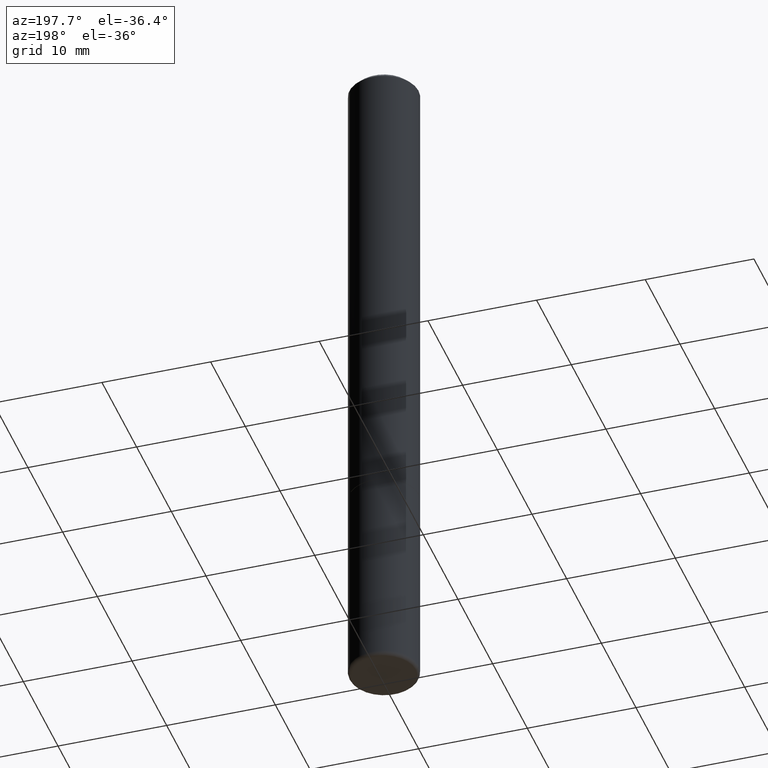
[diagram: clean part render]
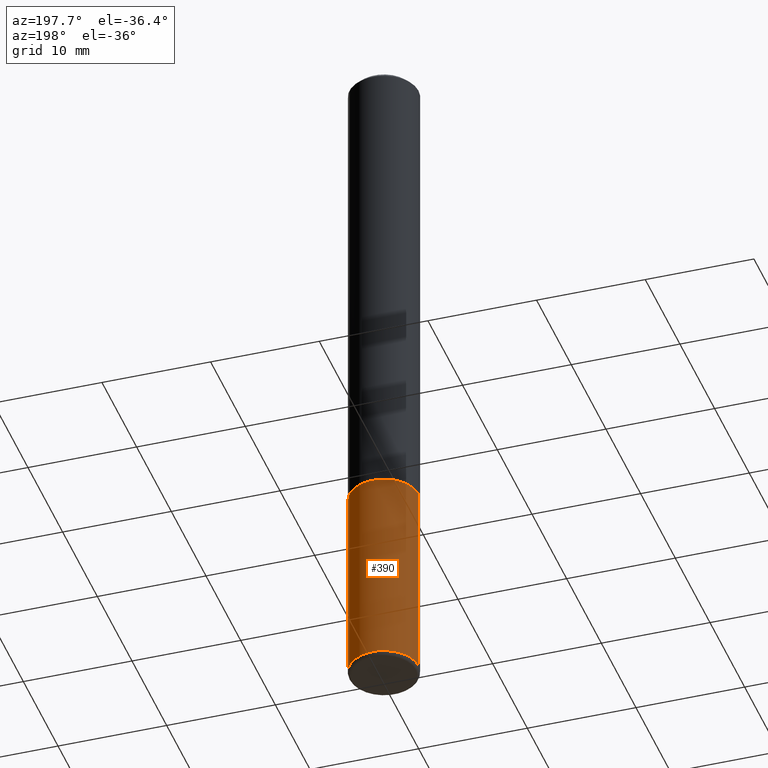
[diagram: same view with one face highlighted and labeled with its STEP entity id]
A machine part, auxiliary view. The second image highlights one B-rep face of the part: STEP entity #390.
In plain terms, the highlighted cylindrical surface (edge-blend (fillet) strip) has radius 3.175 mm, axis along (-0, 0, 1).
Its self-contained STEP definition (entity closure, byte-faithful):
#1 = FACE_OUTER_BOUND ( 'NONE', #106, .T. ) ;
#12 = AXIS2_PLACEMENT_3D ( 'NONE', #272, #399, #118 ) ;
#21 = CARTESIAN_POINT ( 'NONE',  ( 6.076989983370064174E-29, -8.676331127025216680E-15, -2.484999999999999876 ) ) ;
#28 = AXIS2_PLACEMENT_3D ( 'NONE', #143, #240, #293 ) ;
#49 = EDGE_CURVE ( 'NONE', #236, #250, #98, .T. ) ;
#51 = CARTESIAN_POINT ( 'NONE',  ( -0.1250000000000000555, -7.788152707325091448E-15, -2.484999999999999876 ) ) ;
#92 = CARTESIAN_POINT ( 'NONE',  ( 0.1250000000000000000, -6.982962677686288010E-15, -1.750000000000000222 ) ) ;
#93 = VECTOR ( 'NONE', #324, 39.37007874015748143 ) ;
#97 = ORIENTED_EDGE ( 'NONE', *, *, #290, .F. ) ;
#98 = LINE ( 'NONE', #231, #93 ) ;
#106 = EDGE_LOOP ( 'NONE', ( #137, #154, #97, #371 ) ) ;
#118 = DIRECTION ( 'NONE',  ( 1.000000000000000000, -6.982962677686262766E-15, 0.000000000000000000 ) ) ;
#123 = CARTESIAN_POINT ( 'NONE',  ( -0.1250000000000000000, -6.505033315300235838E-15, -1.750000000000000222 ) ) ;
#129 = CARTESIAN_POINT ( 'NONE',  ( 0.1250000000000000555, -9.549201461736000019E-15, -2.484999999999999876 ) ) ;
#137 = ORIENTED_EDGE ( 'NONE', *, *, #204, .T. ) ;
#138 = CIRCLE ( 'NONE', #284, 0.1250000000000000000 ) ;
#143 = CARTESIAN_POINT ( 'NONE',  ( 0.000000000000000000, 0.000000000000000000, 0.000000000000000000 ) ) ;
#154 = ORIENTED_EDGE ( 'NONE', *, *, #328, .T. ) ;
#164 = DIRECTION ( 'NONE',  ( -2.445468806185136597E-29, 3.491481338843145583E-15, 1.000000000000000000 ) ) ;
#168 = LINE ( 'NONE', #318, #392 ) ;
#204 = EDGE_CURVE ( 'NONE', #236, #311, #138, .T. ) ;
#231 = CARTESIAN_POINT ( 'NONE',  ( 0.1250000000000000000, -8.728703347107833388E-16, 6.095220969744919741E-30 ) ) ;
#236 = VERTEX_POINT ( 'NONE', #129 ) ;
#240 = DIRECTION ( 'NONE',  ( -2.445468806185136597E-29, 3.491481338843145583E-15, 1.000000000000000000 ) ) ;
#250 = VERTEX_POINT ( 'NONE', #92 ) ;
#272 = CARTESIAN_POINT ( 'NONE',  ( 4.279570410823989044E-29, -6.110092342975505460E-15, -1.750000000000000222 ) ) ;
#284 = AXIS2_PLACEMENT_3D ( 'NONE', #21, #164, #403 ) ;
#285 = DIRECTION ( 'NONE',  ( -2.445468806185136877E-29, 3.491481338843145188E-15, 1.000000000000000000 ) ) ;
#290 = EDGE_CURVE ( 'NONE', #250, #291, #373, .T. ) ;
#291 = VERTEX_POINT ( 'NONE', #123 ) ;
#293 = DIRECTION ( 'NONE',  ( 1.000000000000000000, -6.982962677686266711E-15, 4.876176775795935793E-29 ) ) ;
#311 = VERTEX_POINT ( 'NONE', #51 ) ;
#318 = CARTESIAN_POINT ( 'NONE',  ( -0.1250000000000000000, 8.881784197001252323E-16, -6.148668862818632227E-30 ) ) ;
#324 = DIRECTION ( 'NONE',  ( -2.445468806185136877E-29, 3.491481338843145188E-15, 1.000000000000000000 ) ) ;
#328 = EDGE_CURVE ( 'NONE', #311, #291, #168, .T. ) ;
#359 = CYLINDRICAL_SURFACE ( 'NONE', #28, 0.1250000000000000000 ) ;
#371 = ORIENTED_EDGE ( 'NONE', *, *, #49, .F. ) ;
#373 = CIRCLE ( 'NONE', #12, 0.1250000000000000000 ) ;
#390 = ADVANCED_FACE ( 'NONE', ( #1 ), #359, .T. ) ;
#392 = VECTOR ( 'NONE', #285, 39.37007874015748143 ) ;
#399 = DIRECTION ( 'NONE',  ( -2.445468806185136597E-29, 3.491481338843145583E-15, 1.000000000000000000 ) ) ;
#403 = DIRECTION ( 'NONE',  ( 1.000000000000000000, -6.982962677686270655E-15, 0.000000000000000000 ) ) ;